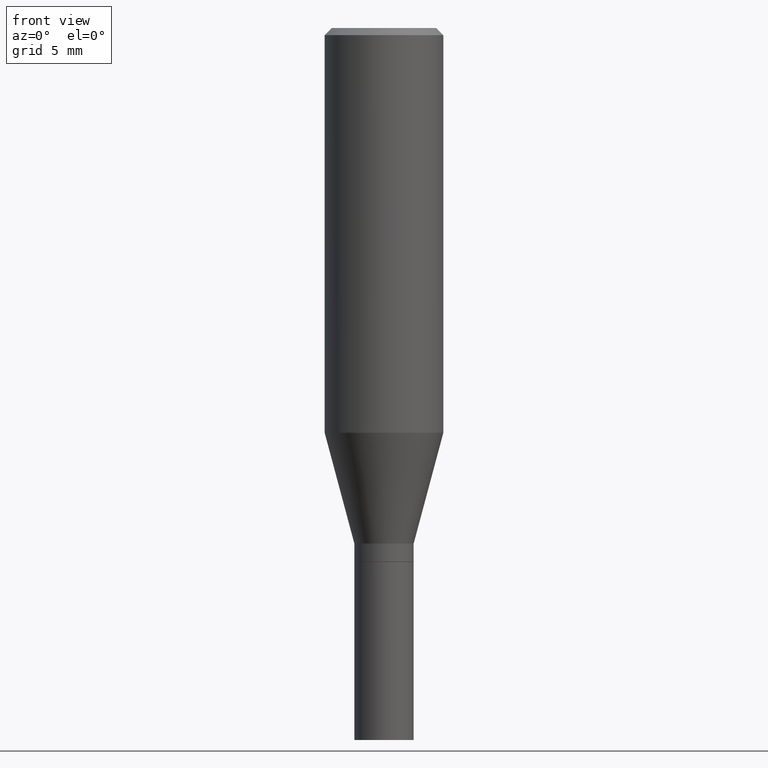
[diagram: clean part render]
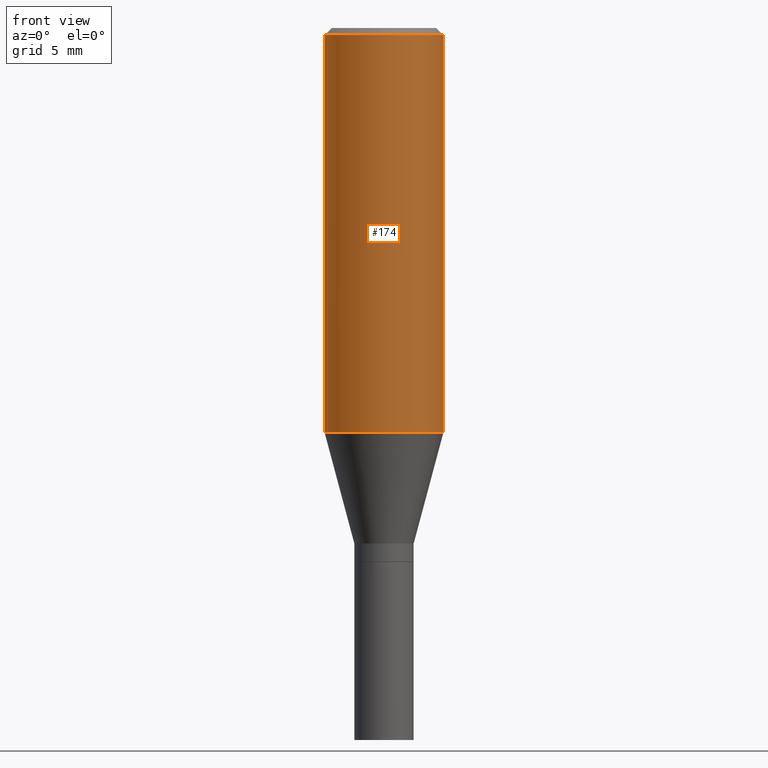
[diagram: same view with one face highlighted and labeled with its STEP entity id]
A machine part, front view. The second image highlights one B-rep face of the part: STEP entity #174.
In plain terms, the highlighted cylindrical surface (partial cylindrical patch) has radius 3.175 mm, axis along (-0, 0, 1).
Its self-contained STEP definition (entity closure, byte-faithful):
#2 = ORIENTED_EDGE ( 'NONE', *, *, #362, .F. ) ;
#16 = ORIENTED_EDGE ( 'NONE', *, *, #137, .T. ) ;
#67 = CARTESIAN_POINT ( 'NONE',  ( 0.1250000000000000000, -3.850219959304365574E-15, -0.8527468245269461677 ) ) ;
#69 = DIRECTION ( 'NONE',  ( -2.445468806185136877E-29, 3.491481338843145188E-15, 1.000000000000000000 ) ) ;
#79 = CARTESIAN_POINT ( 'NONE',  ( 3.668203209277705088E-31, -5.237222008264718399E-17, -0.01499999999999999944 ) ) ;
#86 = CARTESIAN_POINT ( 'NONE',  ( 2.085365758954077213E-29, -2.977349624593583024E-15, -0.8527468245269461677 ) ) ;
#97 = CARTESIAN_POINT ( 'NONE',  ( -0.1250000000000000000, -6.266825026379897209E-16, -0.01499999999999999944 ) ) ;
#103 = DIRECTION ( 'NONE',  ( 1.000000000000000000, -6.982962677686266711E-15, 0.000000000000000000 ) ) ;
#122 = CARTESIAN_POINT ( 'NONE',  ( -0.1250000000000000000, -2.089171204893457398E-15, -0.8527468245269461677 ) ) ;
#124 = FACE_OUTER_BOUND ( 'NONE', #403, .T. ) ;
#137 = EDGE_CURVE ( 'NONE', #346, #448, #302, .T. ) ;
#154 = ORIENTED_EDGE ( 'NONE', *, *, #323, .F. ) ;
#155 = DIRECTION ( 'NONE',  ( -2.445468806185136597E-29, 3.491481338843145583E-15, 1.000000000000000000 ) ) ;
#158 = CIRCLE ( 'NONE', #290, 0.1250000000000000000 ) ;
#174 = ADVANCED_FACE ( 'NONE', ( #124 ), #356, .T. ) ;
#176 = VERTEX_POINT ( 'NONE', #122 ) ;
#220 = AXIS2_PLACEMENT_3D ( 'NONE', #86, #155, #359 ) ;
#222 = CARTESIAN_POINT ( 'NONE',  ( -0.1250000000000000000, 8.881784197001252323E-16, -6.148668862818632227E-30 ) ) ;
#228 = LINE ( 'NONE', #222, #264 ) ;
#231 = CARTESIAN_POINT ( 'NONE',  ( 0.000000000000000000, 0.000000000000000000, 0.000000000000000000 ) ) ;
#248 = CARTESIAN_POINT ( 'NONE',  ( 0.1250000000000000000, -9.252425547934304180E-16, -0.01499999999999999944 ) ) ;
#256 = EDGE_CURVE ( 'NONE', #176, #346, #309, .T. ) ;
#257 = CARTESIAN_POINT ( 'NONE',  ( 0.1250000000000000000, -8.728703347107833388E-16, 6.095220969744919741E-30 ) ) ;
#264 = VECTOR ( 'NONE', #378, 39.37007874015748143 ) ;
#290 = AXIS2_PLACEMENT_3D ( 'NONE', #79, #438, #103 ) ;
#302 = LINE ( 'NONE', #257, #437 ) ;
#309 = CIRCLE ( 'NONE', #220, 0.1250000000000000000 ) ;
#323 = EDGE_CURVE ( 'NONE', #404, #448, #158, .T. ) ;
#346 = VERTEX_POINT ( 'NONE', #67 ) ;
#356 = CYLINDRICAL_SURFACE ( 'NONE', #363, 0.1250000000000000000 ) ;
#359 = DIRECTION ( 'NONE',  ( 1.000000000000000000, -6.982962677686266711E-15, 0.000000000000000000 ) ) ;
#362 = EDGE_CURVE ( 'NONE', #176, #404, #228, .T. ) ;
#363 = AXIS2_PLACEMENT_3D ( 'NONE', #231, #392, #426 ) ;
#378 = DIRECTION ( 'NONE',  ( -2.445468806185136877E-29, 3.491481338843145188E-15, 1.000000000000000000 ) ) ;
#392 = DIRECTION ( 'NONE',  ( -2.445468806185136597E-29, 3.491481338843145583E-15, 1.000000000000000000 ) ) ;
#403 = EDGE_LOOP ( 'NONE', ( #2, #417, #16, #154 ) ) ;
#404 = VERTEX_POINT ( 'NONE', #97 ) ;
#417 = ORIENTED_EDGE ( 'NONE', *, *, #256, .T. ) ;
#426 = DIRECTION ( 'NONE',  ( 1.000000000000000000, -6.982962677686266711E-15, 4.876176775795935793E-29 ) ) ;
#437 = VECTOR ( 'NONE', #69, 39.37007874015748143 ) ;
#438 = DIRECTION ( 'NONE',  ( -2.445468806185136597E-29, 3.491481338843145583E-15, 1.000000000000000000 ) ) ;
#448 = VERTEX_POINT ( 'NONE', #248 ) ;